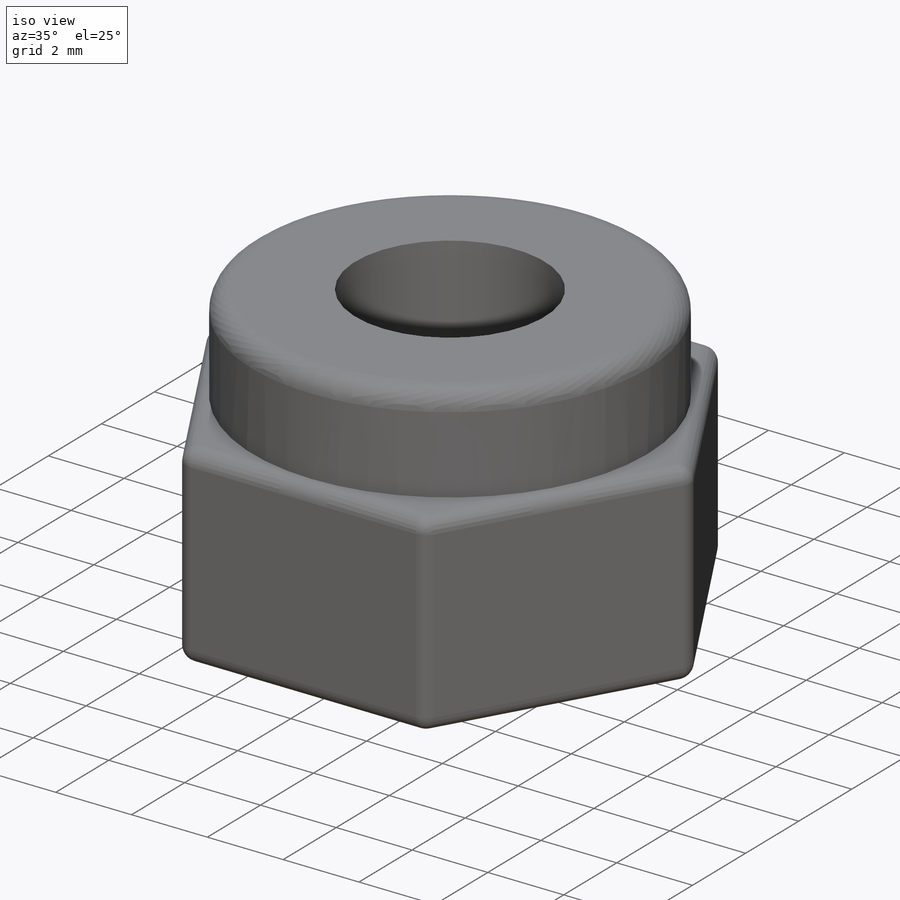
[diagram: iso view]
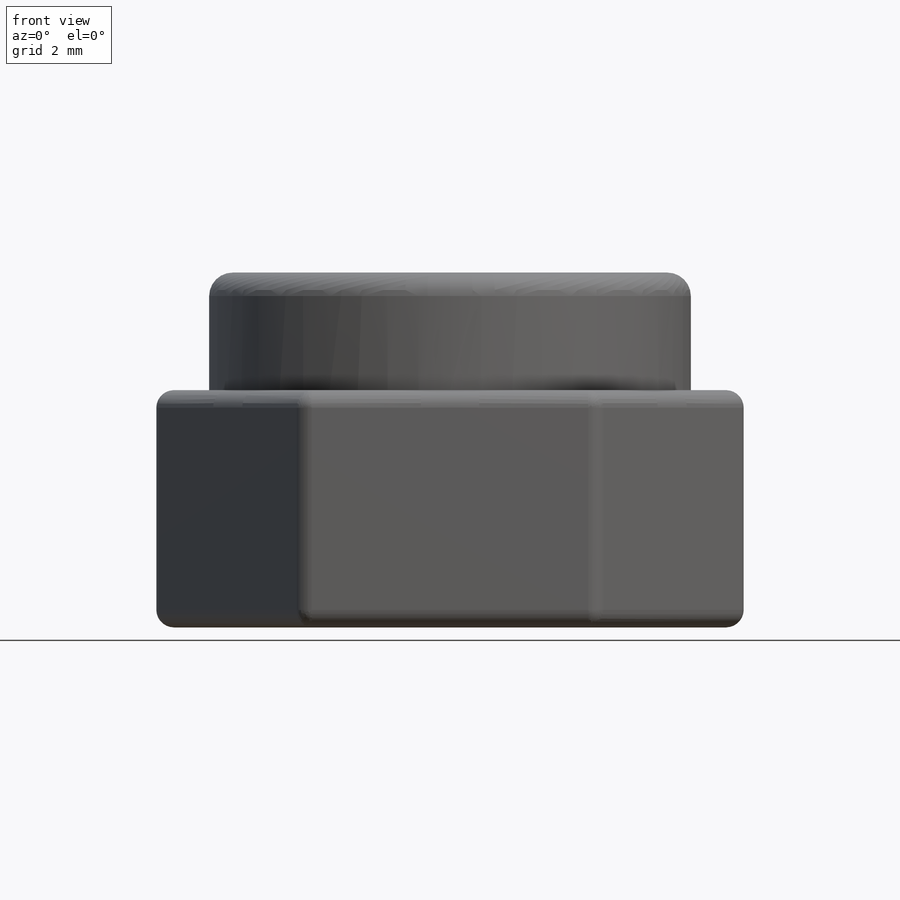
[diagram: front view]
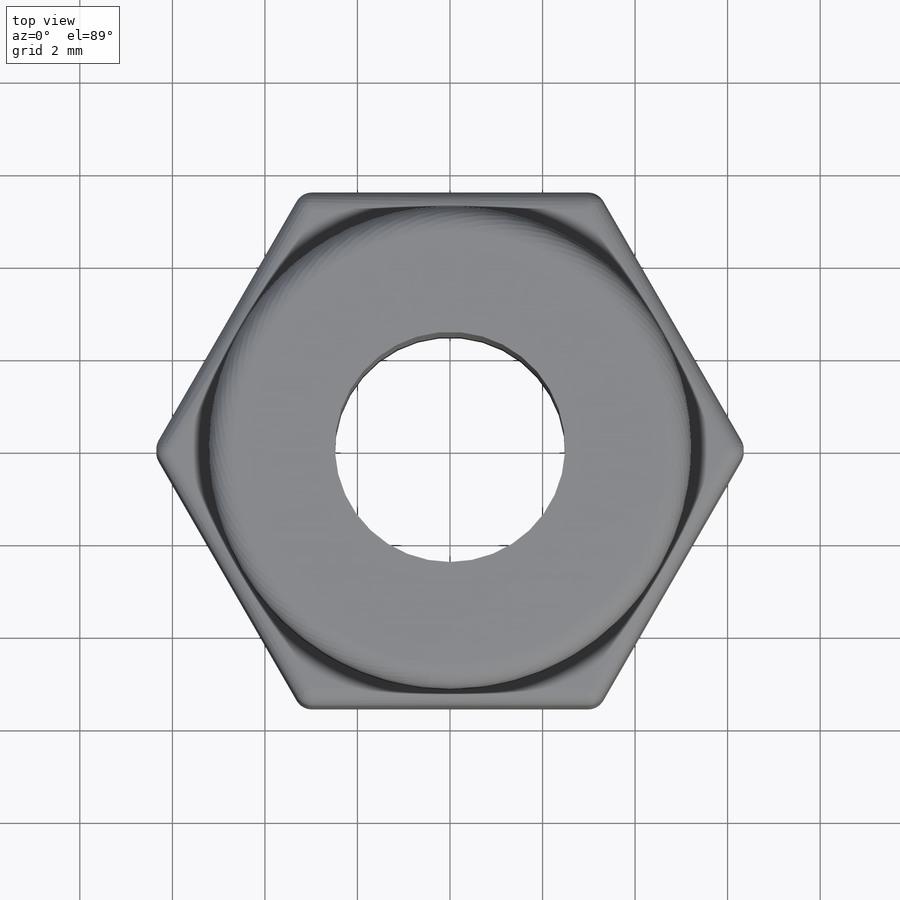
[diagram: top view]
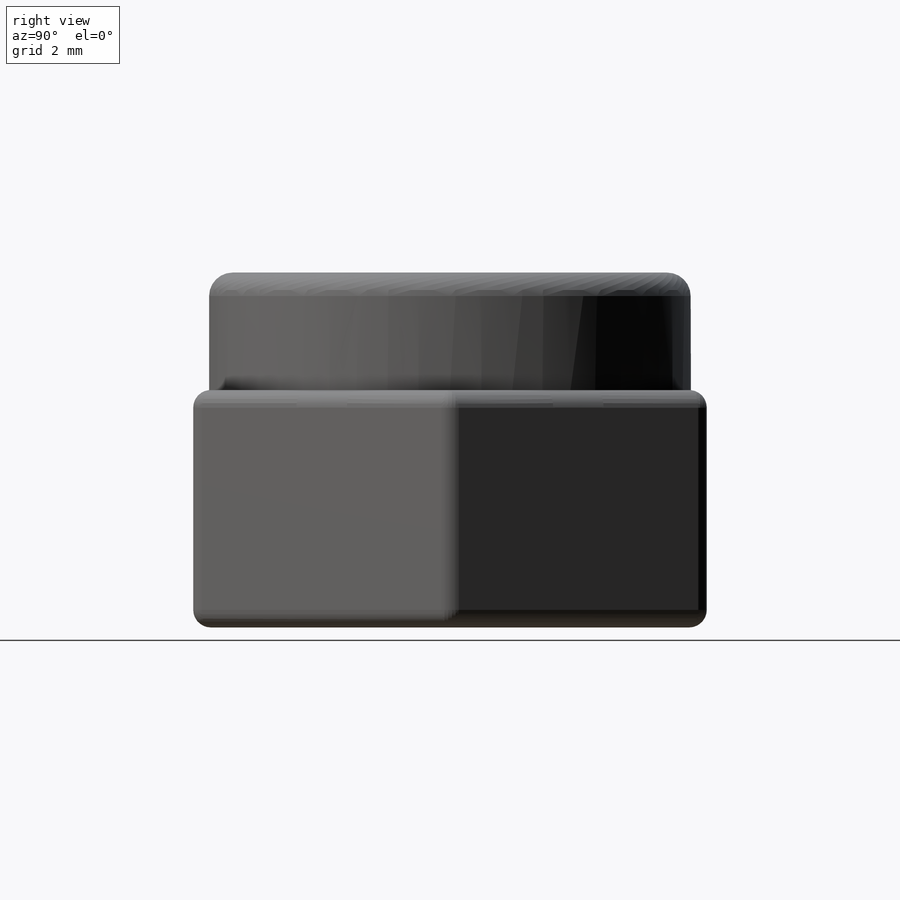
[diagram: right view]
SOLIDWORKS PART (.sldprt)
format: sldprt  version: not decoded by parser v0  size: 250,880 bytes
history: native  units: mm
features: sketch x4, plane x2, fillet x2, material x1, extrude x1, revolve x1, hole x1 (+16 scaffold rows collapsed; 1 parser-record rows omitted)
feature tree (29):
  parser-record x1  (decoder bookkeeping rows leaked as tree rows — omitted from the tree; the rows remain in map.json)
  scaffold x16  (default folders/planes/origin — collapsed)
  material  "AISI 4130 Steel, normalized at 870C"
  plane  "Plane1"  Offset=2.54mm
  sketch  "Sketch1"  dims[c1.D1=~3.204236mm c1.D2=~6.408473mm c1.D3=~3.204236mm c1.D4=~6.408473mm c2.D1=~3.204236mm c2.D2=~6.408473mm c2.D3=~3.204236mm]
  extrude  "Extrude1"  Depth=5.1308mm
  plane  "Plane2"
  sketch  "Sketch2"  dims[D1=5.207mm D2=2.54mm]
  revolve  "Revolve1"  Angle=360deg
  hole  "HoleWzd1"  Diameter=4.97586mm Depth=7.6708mm
  sketch  "Sketch4"
  sketch  "Sketch3"  dims[Diameter=~4.97586mm Depth=7.6708mm]
  fillet  "Fillet1"  Radius=0.381mm
  fillet  "Fillet2"  Radius=0.508mm ModelUUID=0mm UUID=0mm
decode coverage: 8 of 9 modeling features carry decoded parameters
note: ~ marks probable driven/reference dimensions
note: suppression state not decoded; provenance and decode notes live in map.json
